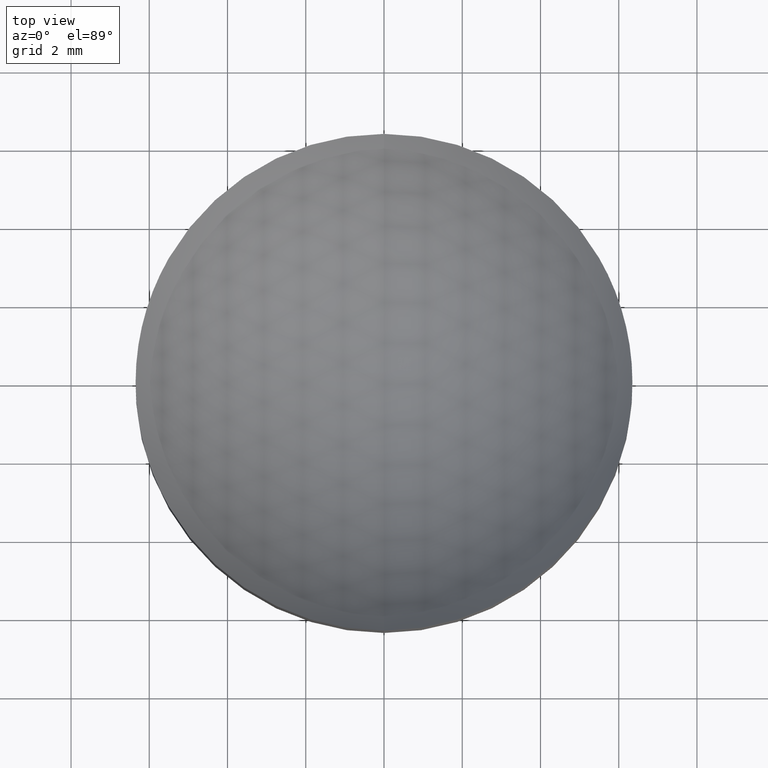
[diagram: clean part render]
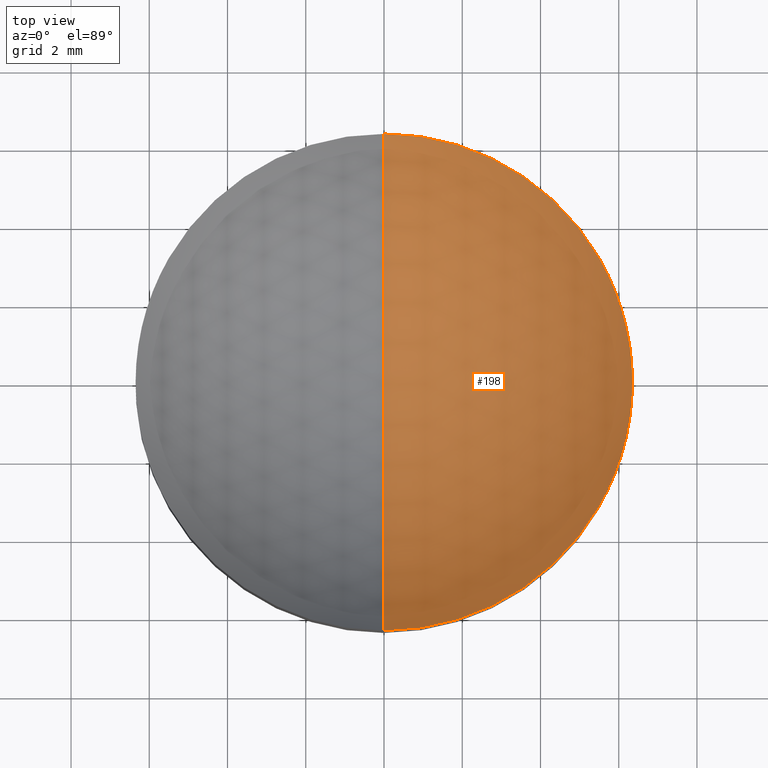
[diagram: same view with one face highlighted and labeled with its STEP entity id]
A machine part, top view. The second image highlights one B-rep face of the part: STEP entity #198.
In plain terms, the highlighted spherical surface has radius 7.904 mm.
Its self-contained STEP definition (entity closure, byte-faithful):
#1 = DIRECTION ( 'NONE',  ( 0.0000000000000000000, 0.0000000000000000000, -1.000000000000000000 ) ) ;
#2 = DIRECTION ( 'NONE',  ( 1.000000000000000000, 0.0000000000000000000, 0.0000000000000000000 ) ) ;
#3 = CARTESIAN_POINT ( 'NONE',  ( 0.0000000000000000000, 1.935857724122411800E-015, 1.000000000000004400 ) ) ;
#4 = CARTESIAN_POINT ( 'NONE',  ( 0.0000000000000000000, 0.0000000000000000000, 8.903999999999994600 ) ) ;
#5 = CARTESIAN_POINT ( 'NONE',  ( 0.0000000000000000000, 0.0000000000000000000, 8.903999999999994600 ) ) ;
#6 = AXIS2_PLACEMENT_3D ( 'NONE', #5, #12, #13 ) ;
#7 = CIRCLE ( 'NONE', #6, 7.903999999999991000 ) ;
#8 = AXIS2_PLACEMENT_3D ( 'NONE', #4, #2, #1 ) ;
#9 = CIRCLE ( 'NONE', #8, 7.903999999999991000 ) ;
#12 = DIRECTION ( 'NONE',  ( -1.000000000000000000, 1.224606353822377300E-016, 2.249491082733206400E-032 ) ) ;
#13 = DIRECTION ( 'NONE',  ( -1.224606353822377300E-016, -1.000000000000000000, 0.0000000000000000000 ) ) ;
#23 = DIRECTION ( 'NONE',  ( 0.0000000000000000000, 1.000000000000000000, 2.194741239849201800E-016 ) ) ;
#24 = DIRECTION ( 'NONE',  ( -1.000000000000000000, 0.0000000000000000000, 0.0000000000000000000 ) ) ;
#25 = AXIS2_PLACEMENT_3D ( 'NONE', #35, #24, #23 ) ;
#26 = SPHERICAL_SURFACE ( 'NONE', #25, 7.903999999999991000 ) ;
#35 = CARTESIAN_POINT ( 'NONE',  ( 0.0000000000000000000, 0.0000000000000000000, 8.903999999999994600 ) ) ;
#40 = FACE_OUTER_BOUND ( 'NONE', #179, .T. ) ;
#67 = CARTESIAN_POINT ( 'NONE',  ( -7.776250346772098400E-016, -6.350000000000001400, 4.197545283336949300 ) ) ;
#68 = DIRECTION ( 'NONE',  ( 0.0000000000000000000, -1.000000000000000000, -1.365923996832131400E-016 ) ) ;
#69 = DIRECTION ( 'NONE',  ( 0.0000000000000000000, -1.836909530733566100E-016, 1.000000000000000000 ) ) ;
#70 = CARTESIAN_POINT ( 'NONE',  ( 0.0000000000000000000, -5.873601405913803400E-016, 4.197545283336950200 ) ) ;
#71 = AXIS2_PLACEMENT_3D ( 'NONE', #70, #69, #68 ) ;
#72 = CIRCLE ( 'NONE', #71, 6.350000000000001400 ) ;
#73 = CARTESIAN_POINT ( 'NONE',  ( 0.0000000000000000000, 6.350000000000001400, 4.197545283336951100 ) ) ;
#179 = EDGE_LOOP ( 'NONE', ( #180, #183, #185 ) ) ;
#180 = ORIENTED_EDGE ( 'NONE', *, *, #181, .F. ) ;
#181 = EDGE_CURVE ( 'NONE', #182, #213, #9, .T. ) ;
#182 = VERTEX_POINT ( 'NONE', #3 ) ;
#183 = ORIENTED_EDGE ( 'NONE', *, *, #184, .T. ) ;
#184 = EDGE_CURVE ( 'NONE', #182, #216, #7, .T. ) ;
#185 = ORIENTED_EDGE ( 'NONE', *, *, #215, .T. ) ;
#198 = ADVANCED_FACE ( 'NONE', ( #40 ), #26, .F. ) ;
#213 = VERTEX_POINT ( 'NONE', #73 ) ;
#215 = EDGE_CURVE ( 'NONE', #216, #213, #72, .T. ) ;
#216 = VERTEX_POINT ( 'NONE', #67 ) ;